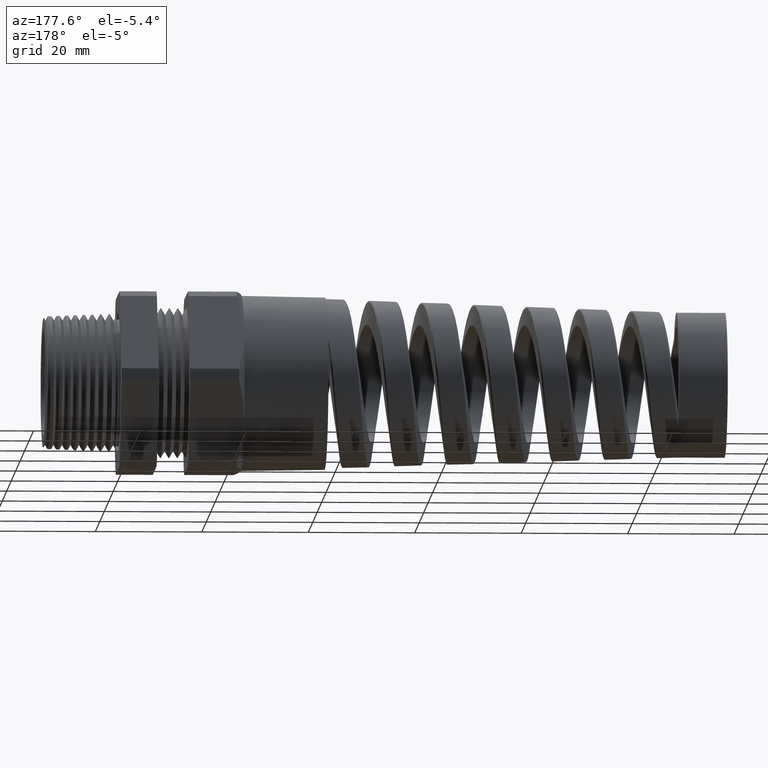
[diagram: clean part render]
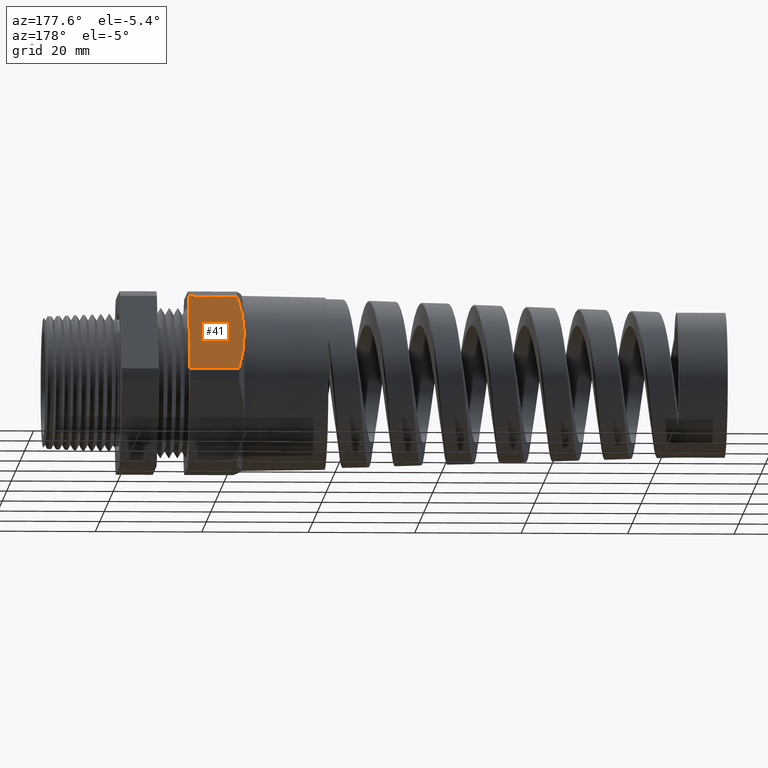
[diagram: same view with one face highlighted and labeled with its STEP entity id]
A machine part, auxiliary view. The second image highlights one B-rep face of the part: STEP entity #41.
In plain terms, the highlighted planar face has unit normal (0, 0.866, 0.5).
Its self-contained STEP definition (entity closure, byte-faithful):
#4 = EDGE_CURVE ( 'NONE', #8, #14, #970, .T. ) ;
#8 = VERTEX_POINT ( 'NONE', #966 ) ;
#14 = VERTEX_POINT ( 'NONE', #955 ) ;
#32 = ORIENTED_EDGE ( 'NONE', *, *, #36, .T. ) ;
#33 = EDGE_LOOP ( 'NONE', ( #53, #32, #35, #50, #54 ) ) ;
#35 = ORIENTED_EDGE ( 'NONE', *, *, #45, .T. ) ;
#36 = EDGE_CURVE ( 'NONE', #88, #47, #978, .T. ) ;
#41 = ADVANCED_FACE ( 'NONE', ( #1023 ), #1022, .T. ) ;
#45 = EDGE_CURVE ( 'NONE', #47, #8, #1008, .T. ) ;
#47 = VERTEX_POINT ( 'NONE', #1055 ) ;
#48 = EDGE_CURVE ( 'NONE', #14, #4938, #1045, .T. ) ;
#50 = ORIENTED_EDGE ( 'NONE', *, *, #4, .T. ) ;
#53 = ORIENTED_EDGE ( 'NONE', *, *, #86, .F. ) ;
#54 = ORIENTED_EDGE ( 'NONE', *, *, #48, .T. ) ;
#86 = EDGE_CURVE ( 'NONE', #88, #4938, #1122, .T. ) ;
#88 = VERTEX_POINT ( 'NONE', #1173 ) ;
#955 = CARTESIAN_POINT ( 'NONE',  ( -0.5058333333333336900, 0.3989927496919443200, 0.6089242856819405700 ) ) ;
#966 = CARTESIAN_POINT ( 'NONE',  ( -0.8674666790032094000, 0.3989927496919443200, 0.6089242856819405700 ) ) ;
#967 = DIRECTION ( 'NONE',  ( 1.000000000000000000, 0.0000000000000000000, 0.0000000000000000000 ) ) ;
#968 = VECTOR ( 'NONE', #967, 39.37007874015748100 ) ;
#969 = CARTESIAN_POINT ( 'NONE',  ( -2.992185896283379200, 0.3989927496919443200, 0.6089242856819405700 ) ) ;
#970 = LINE ( 'NONE', #969, #968 ) ;
#974 = CARTESIAN_POINT ( 'NONE',  ( -0.8814868053153364100, 0.6998789008317275500, 0.08777418461398792100 ) ) ;
#975 = CARTESIAN_POINT ( 'NONE',  ( -0.8674666790032094000, 0.7268402752278256800, 0.04107571431805965400 ) ) ;
#978 = B_SPLINE_CURVE_WITH_KNOTS ( 'NONE', 3,
 ( #975, #974, #1029, #1028, #1027, #1026 ),
 .UNSPECIFIED., .F., .F.,
 ( 4, 2, 4 ),
 ( 2.361308568655489700E-007, 0.004201502711991008900, 0.008402769293125151800 ),
 .UNSPECIFIED. ) ;
#1003 = CARTESIAN_POINT ( 'NONE',  ( -0.9044328033704851500, 0.4938841810957507700, 0.4445675052876111300 ) ) ;
#1004 = CARTESIAN_POINT ( 'NONE',  ( -0.9074375322794262500, 0.5076265280763750900, 0.4207650621019293200 ) ) ;
#1005 = CARTESIAN_POINT ( 'NONE',  ( -0.9114778356147181800, 0.5352725060425331800, 0.3728808236396136700 ) ) ;
#1006 = CARTESIAN_POINT ( 'NONE',  ( -0.9125000000000002000, 0.5491430333788607200, 0.3488563655653212900 ) ) ;
#1007 = CARTESIAN_POINT ( 'NONE',  ( -0.9125000000000002000, 0.5629165124598849400, 0.3250000000000001800 ) ) ;
#1008 = B_SPLINE_CURVE_WITH_KNOTS ( 'NONE', 3,
 ( #1007, #1006, #1005, #1004, #1003, #1058, #1057, #1056 ),
 .UNSPECIFIED., .F., .F.,
 ( 4, 2, 2, 4 ),
 ( 0.008402769293125151800, 0.01048919587064709400, 0.01257562244816903800, 0.01674847560321293000 ),
 .UNSPECIFIED. ) ;
#1018 = DIRECTION ( 'NONE',  ( 0.0000000000000000000, -0.5000000000000003300, 0.8660254037844383700 ) ) ;
#1019 = DIRECTION ( 'NONE',  ( 0.0000000000000000000, 0.8660254037844384900, 0.5000000000000004400 ) ) ;
#1020 = CARTESIAN_POINT ( 'NONE',  ( -2.992185896283379200, 0.7268402752278256800, 0.04107571431805962700 ) ) ;
#1021 = AXIS2_PLACEMENT_3D ( 'NONE', #1020, #1019, #1018 ) ;
#1022 = PLANE ( 'NONE',  #1021 ) ;
#1023 = FACE_OUTER_BOUND ( 'NONE', #33, .T. ) ;
#1026 = CARTESIAN_POINT ( 'NONE',  ( -0.9125000000000002000, 0.5629165124598849400, 0.3250000000000001800 ) ) ;
#1027 = CARTESIAN_POINT ( 'NONE',  ( -0.9124999999999999800, 0.5906510409558672900, 0.2769623875209920600 ) ) ;
#1028 = CARTESIAN_POINT ( 'NONE',  ( -0.9083465192945222600, 0.6181565215413857800, 0.2293214976602745400 ) ) ;
#1029 = CARTESIAN_POINT ( 'NONE',  ( -0.8928224553762588200, 0.6727694882672528000, 0.1347290645390046600 ) ) ;
#1042 = DIRECTION ( 'NONE',  ( 0.0000000000000000000, 0.5000000000000003300, -0.8660254037844383700 ) ) ;
#1043 = VECTOR ( 'NONE', #1042, 39.37007874015748100 ) ;
#1044 = CARTESIAN_POINT ( 'NONE',  ( -0.5058333333333334700, 0.7020415124598852200, 0.08402843139697996300 ) ) ;
#1045 = LINE ( 'NONE', #1044, #1043 ) ;
#1055 = CARTESIAN_POINT ( 'NONE',  ( -0.9125000000000002000, 0.5629165124598849400, 0.3250000000000001800 ) ) ;
#1056 = CARTESIAN_POINT ( 'NONE',  ( -0.8674666790032094000, 0.3989927496919443200, 0.6089242856819405700 ) ) ;
#1057 = CARTESIAN_POINT ( 'NONE',  ( -0.8814205714001799300, 0.4258267530969211400, 0.5624464284140443500 ) ) ;
#1058 = CARTESIAN_POINT ( 'NONE',  ( -0.8927551590989975000, 0.4528752911945963000, 0.5155969861584086500 ) ) ;
#1119 = DIRECTION ( 'NONE',  ( 1.000000000000000000, 0.0000000000000000000, 0.0000000000000000000 ) ) ;
#1120 = VECTOR ( 'NONE', #1119, 39.37007874015748100 ) ;
#1121 = CARTESIAN_POINT ( 'NONE',  ( -2.992185896283379200, 0.7268402752278255700, 0.04107571431805956400 ) ) ;
#1122 = LINE ( 'NONE', #1121, #1120 ) ;
#1173 = CARTESIAN_POINT ( 'NONE',  ( -0.8674666790032094000, 0.7268402752278256800, 0.04107571431805965400 ) ) ;
#4938 = VERTEX_POINT ( 'NONE', #8238 ) ;
#8238 = CARTESIAN_POINT ( 'NONE',  ( -0.5058333333333336900, 0.7268402752278255700, 0.04107571431805956400 ) ) ;